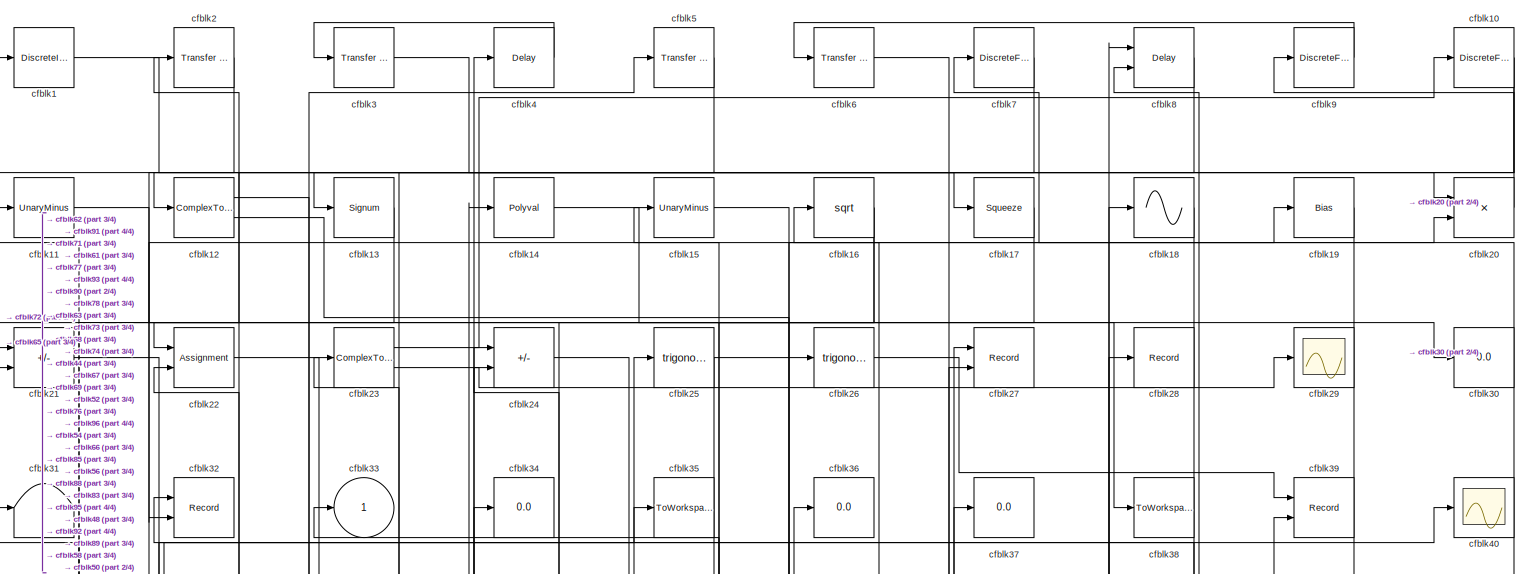
[diagram: root canvas - part 1/4, full width, top band]
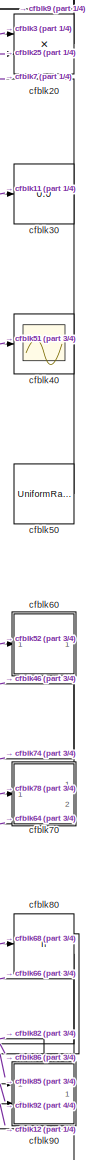
[diagram: root canvas - part 2/4, right side, full height]
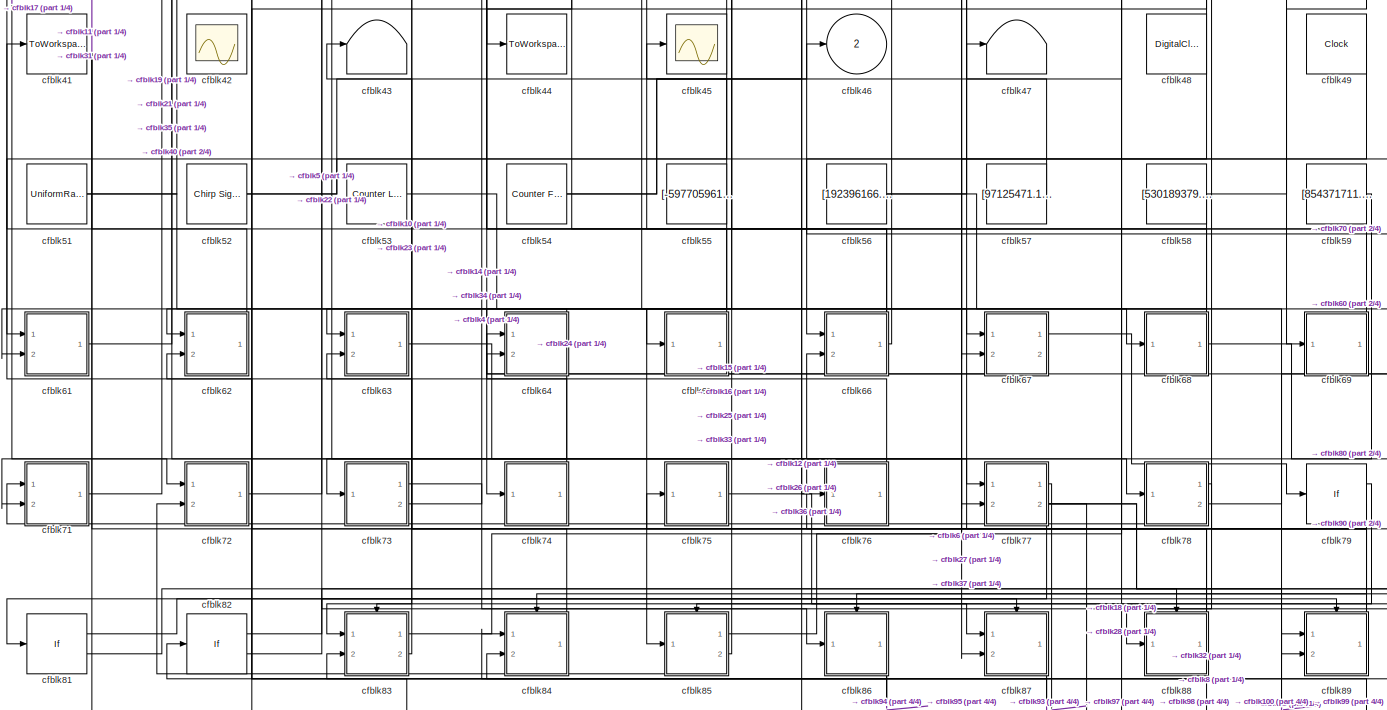
[diagram: root canvas - part 3/4, full width, middle band]
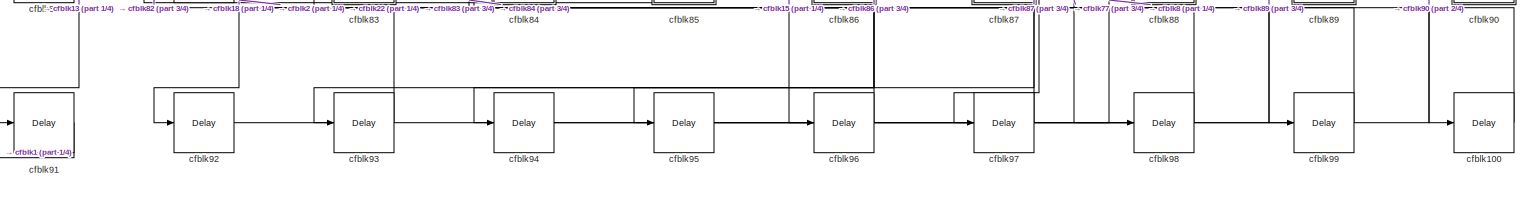
[diagram: root canvas - part 4/4, full width, bottom band]
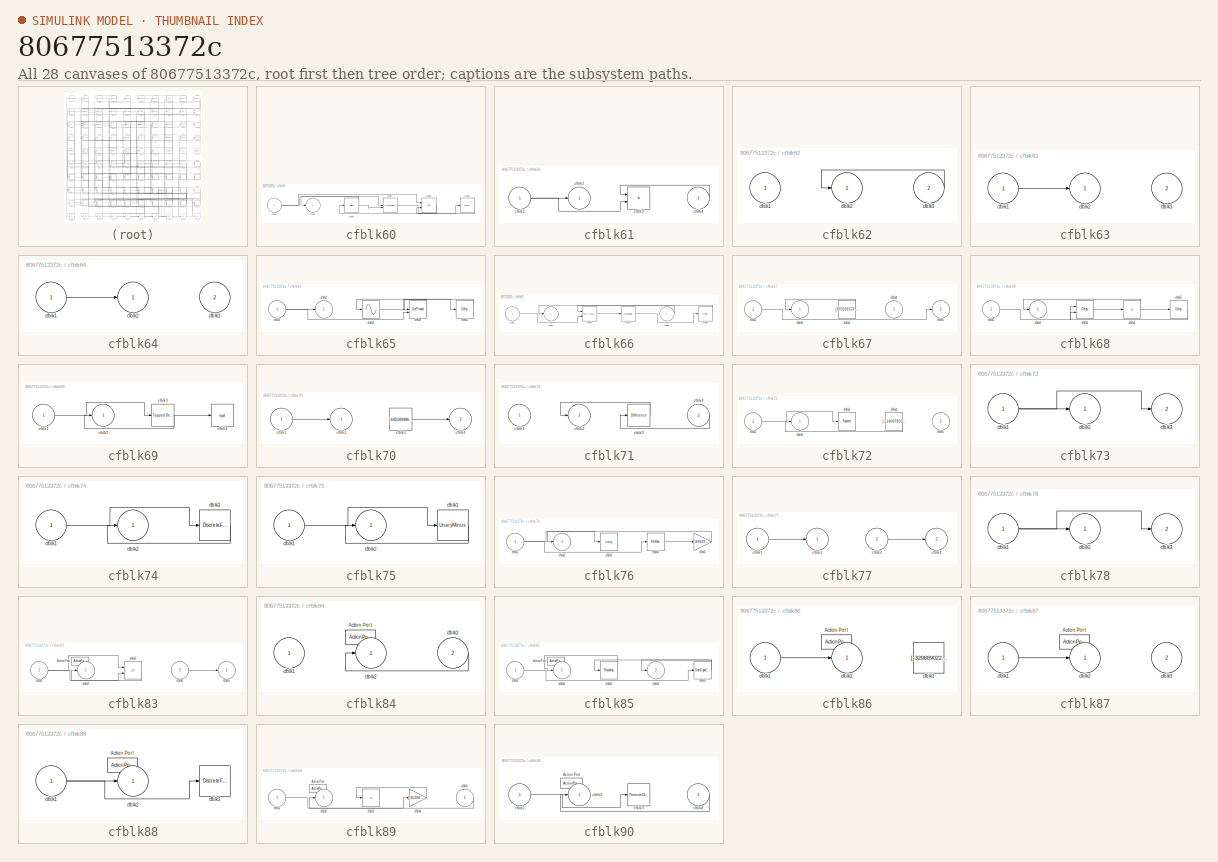
[diagram: thumbnail index - all 28 canvases of the model, root first then tree order]
MODEL slx_80677513372c
KIND model
CONFIG AbsTol = auto
CONFIG EnableMultiTasking = off
CONFIG FixedStep = auto
CONFIG MaxStep = auto
CONFIG MinStep = auto
CONFIG RelTol = 1e-3
CONFIG SampleTimeConstraint = Unconstrained
CONFIG SolverName = VariableStepAuto
CONFIG StartTime = 0.0
CONFIG StopTime = 10.0
BLOCK [DiscreteIntegrator] cfblk1
  ICPrevOutput = DiscIntNeverNeededParam
  ICPrevScaledInput = DiscIntNeverNeededParam
  InitialConditionSetting = Auto
  Ports = [1, 1]
BLOCK [DiscreteFir] cfblk10
  InputPortMap = u0
  OutputPortMap = o0
  Ports = [1, 1]
  SampleTime = 1
BLOCK [Delay] cfblk100
  InputPortMap = u0
  Ports = [1, 1]
  SampleTime = 1
BLOCK [UnaryMinus] cfblk11
BLOCK [ComplexToMagnitudeAngle] cfblk12
  Ports = [1, 2]
BLOCK [Signum] cfblk13
BLOCK [Polyval] cfblk14
  Coefs = [ +2.081618890e-019, -1.441693666e-014, +4.719686976e-010, -8.536869453e-006, +1.621573104e-001, -8.087801117e+001 ]
BLOCK [UnaryMinus] cfblk15
BLOCK [Sqrt] cfblk16
BLOCK [Squeeze] cfblk17
BLOCK [Sin] cfblk18
  Ports = [1, 1]
  SampleTime = 0
  TimeSource = Use external signal
BLOCK [Bias] cfblk19
  Bias = [567170251.979678]
  SaturateOnIntegerOverflow = off
BLOCK [Reference] cfblk2  REF=simulink/Discrete/Transfer Fcn
Real Zero
  Ports = [1, 1]
  SourceBlock = simulink/Discrete/Transfer Fcn\nReal Zero
  SourceProductBaseCode = SL
  SourceType = Transfer Fcn Real Zero
BLOCK [Product] cfblk20
  Inputs = **
  Ports = [2, 1]
BLOCK [Sum] cfblk21
  IconShape = rectangular
  Inputs = +-
  Ports = [2, 1]
BLOCK [Assignment] cfblk22
  DiagnosticForDimensions = Warning
  IndexOptions = Index vector (dialog)
  Indices = 1
  OutputSizes = 1
  Ports = [2, 1]
BLOCK [ComplexToMagnitudeAngle] cfblk23
  Ports = [1, 2]
BLOCK [Sum] cfblk24
  IconShape = rectangular
  Inputs = -+
  Ports = [2, 1]
BLOCK [Trigonometry] cfblk25
  Ports = [1, 1]
BLOCK [Trigonometry] cfblk26
  Ports = [1, 1]
BLOCK [Record] cfblk27
  CompatibilityTag = XY
  FileSettingsInternal = {"entries":[{"content":{"excelSettings":{"content":{},"type":"Streamout.ExcelSettings"}},"type":"Streamout.FileSettingStorage","uuid":"a15bf5db-3741-4cf3-90f6-61c3119d6459"}],"packageUris":["http://schema.mathworks.com/mf0/streamout_blocks/R2020a"],"version":"1.0"}
  Layout = [1 1]
  Ports = [2]
  SignalsInternal = {"entries":[{"content":{"signals":[{"content":{"blockPath":["sampleModel259/cfblk27"],"channel":[],"dimensions":[1],"domain":"sampleModel259/cfblk27","lineColor":"#a2142f","plots":[1],"port":1,"sid":[""],"signalID":10726,"signalName":"cfblk88"},"type":"RecordBlkView.Signal","uuid":"dc7c6215-aa68-4dff-98e1-634e55d8342f"},{"content":{"blockPath":["sampleModel259/cfblk27"],"channel":[],"dimensions":[...<+387ch>
  VisualizationBindings = {"xyplotplugin":{"info":[{"series":[{"bindingParametersList":[{"parameter":"X-Axis","signalID":10726,"signalName":"cfblk88"},{"parameter":"Y-Axis","signalID":10730,"signalName":"cfblk85:1"}],"seriesID":54620}],"subplotID":1}]}}
BLOCK [Record] cfblk28
  FileSettingsInternal = {"entries":[{"content":{"excelSettings":{"content":{},"type":"Streamout.ExcelSettings"}},"type":"Streamout.FileSettingStorage","uuid":"feed3611-4c3d-457a-aeeb-df4a7c1a2444"}],"packageUris":["http://schema.mathworks.com/mf0/streamout_blocks/R2020a"],"version":"1.0"}
  Ports = [1]
  SignalsInternal = {"entries":[{"content":{"signals":[{"content":{"blockPath":["sampleModel259/cfblk28"],"channel":[],"dimensions":[1],"domain":"sampleModel259/cfblk28","lineColor":"#77ac30","plots":[1],"port":1,"sid":[""],"signalID":10752,"signalName":"cfblk54"},"type":"RecordBlkView.Signal","uuid":"2dff1987-6ee1-4f19-a23b-8245c5550991"}]},"type":"RecordBlkView.InputSignals","uuid":"13ac1fd1-a9dd-4df2-87e5-56531520...<+98ch>
  VisualizationBindings = {"sparklinesplugin":{"info":[{"bindingParametersList":[],"subplotID":1}]}}
BLOCK [Scope] cfblk29
  Floating = off
  NumInputPorts = 1
  Ports = [1]
BLOCK [Reference] cfblk3  REF=simulink/Discrete/Transfer Fcn
Real Zero
  Ports = [1, 1]
  SourceBlock = simulink/Discrete/Transfer Fcn\nReal Zero
  SourceProductBaseCode = SL
  SourceType = Transfer Fcn Real Zero
BLOCK [Display] cfblk30
  Decimation = 1
  Ports = [1]
BLOCK [Terminator] cfblk31
BLOCK [Record] cfblk32
  CompatibilityTag = XY
  FileSettingsInternal = {"entries":[{"content":{"excelSettings":{"content":{},"type":"Streamout.ExcelSettings"}},"type":"Streamout.FileSettingStorage","uuid":"b89653e3-1f07-4440-8bba-bfd999475c1f"}],"packageUris":["http://schema.mathworks.com/mf0/streamout_blocks/R2020a"],"version":"1.0"}
  Layout = [1 1]
  Ports = [2]
  SignalsInternal = {"entries":[{"content":{"signals":[{"content":{"blockPath":["sampleModel259/cfblk32"],"channel":[],"dimensions":[1],"domain":"sampleModel259/cfblk32","lineColor":"#a2142f","plots":[1],"port":1,"sid":[""],"signalID":10734,"signalName":"cfblk48"},"type":"RecordBlkView.Signal","uuid":"aa971696-964b-49ee-93f3-322156b77438"},{"content":{"blockPath":["sampleModel259/cfblk32"],"channel":[],"dimensions":[...<+384ch>
  VisualizationBindings = {"xyplotplugin":{"info":[{"series":[{"bindingParametersList":[{"parameter":"X-Axis","signalID":10734,"signalName":"cfblk48"},{"parameter":"Y-Axis","signalID":10738,"signalName":"cfblk7"}],"seriesID":48673}],"subplotID":1}]}}
BLOCK [Outport] cfblk33
BLOCK [Display] cfblk34
  Decimation = 1
  Ports = [1]
BLOCK [ToWorkspace] cfblk35
  FixptAsFi = on
  MaxDataPoints = inf
  Ports = [1]
  SampleTime = -1
  SaveFormat = Timeseries
  VariableName = hqtlqvu
BLOCK [Display] cfblk36
  Decimation = 1
  Ports = [1]
BLOCK [Display] cfblk37
  Decimation = 1
  Ports = [1]
BLOCK [ToWorkspace] cfblk38
  FixptAsFi = on
  MaxDataPoints = inf
  Ports = [1]
  SampleTime = -1
  SaveFormat = Timeseries
  VariableName = zhiieed
BLOCK [Record] cfblk39
  CompatibilityTag = XY
  FileSettingsInternal = {"entries":[{"content":{"excelSettings":{"content":{},"type":"Streamout.ExcelSettings"}},"type":"Streamout.FileSettingStorage","uuid":"77ff0798-a035-4183-a31f-87dc05993ce6"}],"packageUris":["http://schema.mathworks.com/mf0/streamout_blocks/R2020a"],"version":"1.0"}
  Layout = [1 1]
  Ports = [2]
  SignalsInternal = {"entries":[{"content":{"signals":[{"content":{"blockPath":["sampleModel259/cfblk39"],"channel":[],"dimensions":[1],"domain":"sampleModel259/cfblk39","lineColor":"#a2142f","plots":[1],"port":1,"sid":[""],"signalID":10742,"signalName":"cfblk26"},"type":"RecordBlkView.Signal","uuid":"7a6bd62a-1676-4e20-b553-acc02f50362f"},{"content":{"blockPath":["sampleModel259/cfblk39"],"channel":[],"dimensions":[...<+385ch>
  VisualizationBindings = {"xyplotplugin":{"info":[{"series":[{"bindingParametersList":[{"parameter":"X-Axis","signalID":10742,"signalName":"cfblk26"},{"parameter":"Y-Axis","signalID":10746,"signalName":"cfblk58"}],"seriesID":17387}],"subplotID":1}]}}
BLOCK [Delay] cfblk4
  InputPortMap = u0
  Ports = [1, 1]
  SampleTime = 1
BLOCK [Scope] cfblk40
  Floating = off
  NumInputPorts = 1
  Ports = [1]
BLOCK [ToWorkspace] cfblk41
  FixptAsFi = on
  MaxDataPoints = inf
  Ports = [1]
  SampleTime = -1
  SaveFormat = Timeseries
  VariableName = wssaqxk
BLOCK [Scope] cfblk42
  Floating = on
  NumInputPorts = 1
  Ports = []
BLOCK [Terminator] cfblk43
BLOCK [ToWorkspace] cfblk44
  FixptAsFi = on
  MaxDataPoints = inf
  Ports = [1]
  SampleTime = -1
  SaveFormat = Timeseries
  VariableName = cgefoyz
BLOCK [Scope] cfblk45
  Floating = off
  NumInputPorts = 1
  Ports = [1]
BLOCK [Outport] cfblk46
  Port = 2
BLOCK [Terminator] cfblk47
BLOCK [DigitalClock] cfblk48
BLOCK [Clock] cfblk49
BLOCK [Reference] cfblk5  REF=simulink/Discrete/Transfer Fcn
Lead or Lag
  Ports = [1, 1]
  SourceBlock = simulink/Discrete/Transfer Fcn\nLead or Lag
  SourceProductBaseCode = SL
  SourceType = Lead or Lag Compensator
BLOCK [UniformRandomNumber] cfblk50
  Maximum = [1390579412.419839]
  Minimum = [-9722096741.115524]
  SampleTime = 0.1
  Seed = [42070963.000000]
BLOCK [UniformRandomNumber] cfblk51
  Maximum = [862788359.237772]
  Minimum = [-9203084718.990440]
  SampleTime = 0.1
  Seed = [70444919.000000]
BLOCK [Reference] cfblk52  REF=simulink/Sources/Chirp Signal
  Ports = [0, 1]
  SourceBlock = simulink/Sources/Chirp Signal
  SourceProductBaseCode = SL
  SourceType = chirp
BLOCK [Reference] cfblk53  REF=simulink/Sources/Counter
Limited
  Ports = [0, 1]
  SourceBlock = simulink/Sources/Counter\nLimited
  SourceProductBaseCode = SL
  SourceType = Counter Limited
BLOCK [Reference] cfblk54  REF=simulink/Sources/Counter
Free-Running
  Ports = [0, 1]
  SourceBlock = simulink/Sources/Counter\nFree-Running
  SourceProductBaseCode = SL
  SourceType = Counter Free-Running
BLOCK [Constant] cfblk55
  SampleTime = 1
  Value = [-597705961.555916]
BLOCK [Constant] cfblk56
  SampleTime = 1
  Value = [192396166.169117]
BLOCK [Constant] cfblk57
  SampleTime = 1
  Value = [97125471.105077]
BLOCK [Constant] cfblk58
  SampleTime = 1
  Value = [530189379.262105]
BLOCK [Constant] cfblk59
  SampleTime = 1
  Value = [854371711.861911]
BLOCK [Reference] cfblk6  REF=simulink/Discrete/Transfer Fcn
Real Zero
  Ports = [1, 1]
  SourceBlock = simulink/Discrete/Transfer Fcn\nReal Zero
  SourceProductBaseCode = SL
  SourceType = Transfer Fcn Real Zero
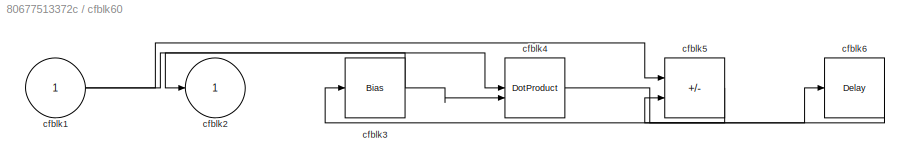
BLOCK [SubSystem] cfblk60
  Ports = [1, 1]
  RequestExecContextInheritance = off
BLOCK [Inport] cfblk60/cfblk1
BLOCK [Outport] cfblk60/cfblk2
BLOCK [Bias] cfblk60/cfblk3
  Bias = [337198668.555358]
  SaturateOnIntegerOverflow = off
BLOCK [DotProduct] cfblk60/cfblk4
  OutDataTypeStr = Inherit: Inherit via internal rule
BLOCK [Sum] cfblk60/cfblk5
  IconShape = rectangular
  Inputs = -+
  Ports = [2, 1]
BLOCK [Delay] cfblk60/cfblk6
  InputPortMap = u0
  Ports = [1, 1]
  SampleTime = 1
BLOCK [SubSystem] cfblk61
  Ports = [2, 1]
  RequestExecContextInheritance = off
BLOCK [Inport] cfblk61/cfblk1
BLOCK [Outport] cfblk61/cfblk2
BLOCK [Product] cfblk61/cfblk3
  Inputs = **
  Ports = [2, 1]
BLOCK [Inport] cfblk61/cfblk4
  Port = 2
BLOCK [SubSystem] cfblk62
  Ports = [2, 1]
  RequestExecContextInheritance = off
BLOCK [Inport] cfblk62/cfblk1
BLOCK [Outport] cfblk62/cfblk2
BLOCK [Inport] cfblk62/cfblk3
  Port = 2
BLOCK [SubSystem] cfblk63
  Ports = [2, 1]
  RequestExecContextInheritance = off
BLOCK [Inport] cfblk63/cfblk1
BLOCK [Outport] cfblk63/cfblk2
BLOCK [Inport] cfblk63/cfblk3
  Port = 2
BLOCK [SubSystem] cfblk64
  Ports = [2, 1]
  RequestExecContextInheritance = off
BLOCK [Inport] cfblk64/cfblk1
BLOCK [Outport] cfblk64/cfblk2
BLOCK [Inport] cfblk64/cfblk3
  Port = 2
BLOCK [SubSystem] cfblk65
  Ports = [1, 1]
  RequestExecContextInheritance = off
BLOCK [Inport] cfblk65/cfblk1
BLOCK [Outport] cfblk65/cfblk2
BLOCK [Sin] cfblk65/cfblk3
  Ports = [1, 1]
  SampleTime = 0
  TimeSource = Use external signal
BLOCK [DotProduct] cfblk65/cfblk4
  OutDataTypeStr = Inherit: Inherit via internal rule
BLOCK [Delay] cfblk65/cfblk5
  InputPortMap = u0
  Ports = [1, 1]
  SampleTime = 1
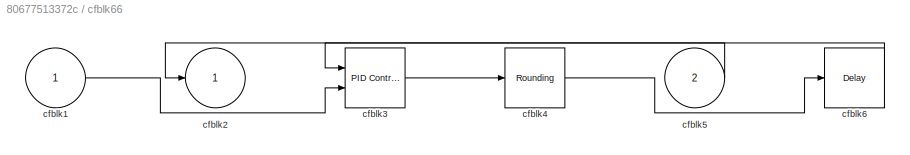
BLOCK [SubSystem] cfblk66
  Ports = [2, 1]
  RequestExecContextInheritance = off
BLOCK [Inport] cfblk66/cfblk1
BLOCK [Outport] cfblk66/cfblk2
BLOCK [Reference] cfblk66/cfblk3  REF=slpidlib/PID Controller (2DOF)
  Ports = [2, 1]
  SourceBlock = slpidlib/PID Controller (2DOF)
  SourceProductBaseCode = SL
  SourceType = PID 2dof
BLOCK [Rounding] cfblk66/cfblk4
BLOCK [Inport] cfblk66/cfblk5
  Port = 2
BLOCK [Delay] cfblk66/cfblk6
  InputPortMap = u0
  Ports = [1, 1]
  SampleTime = 1
BLOCK [SubSystem] cfblk67
  Ports = [2, 2]
  RequestExecContextInheritance = off
BLOCK [Inport] cfblk67/cfblk1
BLOCK [Outport] cfblk67/cfblk2
BLOCK [Constant] cfblk67/cfblk3
  SampleTime = 1
  Value = [170593157.202019]
BLOCK [Inport] cfblk67/cfblk4
  Port = 2
BLOCK [Outport] cfblk67/cfblk5
  Port = 2
BLOCK [SubSystem] cfblk68
  Ports = [1, 1]
  RequestExecContextInheritance = off
BLOCK [Inport] cfblk68/cfblk1
BLOCK [Outport] cfblk68/cfblk2
BLOCK [Delay] cfblk68/cfblk3
  DelayLengthSource = Input port
  InputPortMap = u0,p1
  Ports = [2, 1]
  SampleTime = 1
BLOCK [Product] cfblk68/cfblk4
  Inputs = *
  Ports = [1, 1]
BLOCK [Delay] cfblk68/cfblk5
  InputPortMap = u0
  Ports = [1, 1]
  SampleTime = 1
BLOCK [SubSystem] cfblk69
  Ports = [1, 1]
  RequestExecContextInheritance = off
BLOCK [Inport] cfblk69/cfblk1
BLOCK [Outport] cfblk69/cfblk2
BLOCK [Reference] cfblk69/cfblk3  REF=simulink/Discrete/Tapped Delay
  Ports = [1, 1]
  SourceBlock = simulink/Discrete/Tapped Delay
  SourceProductBaseCode = SL
  SourceType = Tapped Delay Line
BLOCK [Sqrt] cfblk69/cfblk4
BLOCK [DiscreteFilter] cfblk7
  InputPortMap = u0
  Ports = [1, 1]
  SampleTime = 1
BLOCK [SubSystem] cfblk70
  Ports = [1, 2]
  RequestExecContextInheritance = off
BLOCK [Inport] cfblk70/cfblk1
BLOCK [Outport] cfblk70/cfblk2
BLOCK [Constant] cfblk70/cfblk3
  SampleTime = 1
  Value = [-642189486.966722]
BLOCK [Outport] cfblk70/cfblk4
  Port = 2
BLOCK [SubSystem] cfblk71
  Ports = [2, 1]
  RequestExecContextInheritance = off
BLOCK [Inport] cfblk71/cfblk1
BLOCK [Outport] cfblk71/cfblk2
BLOCK [Reference] cfblk71/cfblk3  REF=simulink/Discrete/Difference
  Ports = [1, 1]
  SourceBlock = simulink/Discrete/Difference
  SourceProductBaseCode = SL
  SourceType = Difference
BLOCK [Inport] cfblk71/cfblk4
  Port = 2
BLOCK [SubSystem] cfblk72
  Ports = [2, 1]
  RequestExecContextInheritance = off
BLOCK [Inport] cfblk72/cfblk1
BLOCK [Outport] cfblk72/cfblk2
BLOCK [Squeeze] cfblk72/cfblk3
BLOCK [Constant] cfblk72/cfblk4
  SampleTime = 1
  Value = [-114087835.597097]
BLOCK [Inport] cfblk72/cfblk5
  Port = 2
BLOCK [SubSystem] cfblk73
  Ports = [1, 2]
  RequestExecContextInheritance = off
BLOCK [Inport] cfblk73/cfblk1
BLOCK [Outport] cfblk73/cfblk2
BLOCK [Outport] cfblk73/cfblk3
  Port = 2
BLOCK [SubSystem] cfblk74
  Ports = [1, 1]
  RequestExecContextInheritance = off
BLOCK [Inport] cfblk74/cfblk1
BLOCK [Outport] cfblk74/cfblk2
BLOCK [DiscreteFir] cfblk74/cfblk3
  InputPortMap = u0
  OutputPortMap = o0
  Ports = [1, 1]
  SampleTime = 1
BLOCK [SubSystem] cfblk75
  Ports = [1, 1]
  RequestExecContextInheritance = off
BLOCK [Inport] cfblk75/cfblk1
BLOCK [Outport] cfblk75/cfblk2
BLOCK [UnaryMinus] cfblk75/cfblk3
BLOCK [SubSystem] cfblk76
  Ports = [1, 1]
  RequestExecContextInheritance = off
BLOCK [Inport] cfblk76/cfblk1
BLOCK [Outport] cfblk76/cfblk2
BLOCK [Math] cfblk76/cfblk3
  Operator = conj
  Ports = [1, 1]
BLOCK [MinMax] cfblk76/cfblk4
  Function = max
  Ports = [1, 1]
BLOCK [Gain] cfblk76/cfblk5
  Gain = [-939399860.050888]
BLOCK [SubSystem] cfblk77
  Ports = [2, 2]
  RequestExecContextInheritance = off
BLOCK [Inport] cfblk77/cfblk1
BLOCK [Outport] cfblk77/cfblk2
BLOCK [Inport] cfblk77/cfblk3
  Port = 2
BLOCK [Outport] cfblk77/cfblk4
  Port = 2
BLOCK [SubSystem] cfblk78
  Ports = [1, 2]
  RequestExecContextInheritance = off
BLOCK [Inport] cfblk78/cfblk1
BLOCK [Outport] cfblk78/cfblk2
BLOCK [Outport] cfblk78/cfblk3
  Port = 2
BLOCK [If] cfblk79
  IfExpression = u1 >= 0
  Ports = [1, 2]
  SampleTime = 1
BLOCK [Delay] cfblk8
  InputPortMap = u0,e6
  Ports = [2, 1]
  SampleTime = 1
  ShowEnablePort = on
BLOCK [If] cfblk80
  IfExpression = u1 >= 0
  Ports = [1, 2]
  SampleTime = 1
BLOCK [If] cfblk81
  IfExpression = u1 >= 0
  Ports = [1, 2]
  SampleTime = 1
BLOCK [If] cfblk82
  IfExpression = u1 >= 0
  Ports = [1, 2]
  SampleTime = 1
BLOCK [SubSystem] cfblk83
  Ports = [2, 2, 0, 0, 0, 0, 0, 1]
  RequestExecContextInheritance = off
  TreatAsAtomicUnit = on
BLOCK [ActionPort] cfblk83/Action Port
  ActionPortLabel = if(u1 >= 0)
BLOCK [Inport] cfblk83/cfblk1
BLOCK [Outport] cfblk83/cfblk2
BLOCK [Sum] cfblk83/cfblk3
  IconShape = rectangular
  Inputs = --
  Ports = [2, 1]
BLOCK [Inport] cfblk83/cfblk4
  Port = 2
BLOCK [Outport] cfblk83/cfblk5
  Port = 2
BLOCK [SubSystem] cfblk84
  Ports = [2, 1, 0, 0, 0, 0, 0, 1]
  RequestExecContextInheritance = off
  TreatAsAtomicUnit = on
BLOCK [ActionPort] cfblk84/Action Port
  ActionPortLabel = else
BLOCK [Inport] cfblk84/cfblk1
BLOCK [Outport] cfblk84/cfblk2
BLOCK [Inport] cfblk84/cfblk3
  Port = 2
BLOCK [SubSystem] cfblk85
  Ports = [1, 2, 0, 0, 0, 0, 0, 1]
  RequestExecContextInheritance = off
  TreatAsAtomicUnit = on
BLOCK [ActionPort] cfblk85/Action Port
  ActionPortLabel = if(u1 >= 0)
BLOCK [Inport] cfblk85/cfblk1
BLOCK [Outport] cfblk85/cfblk2
BLOCK [Rounding] cfblk85/cfblk3
BLOCK [Outport] cfblk85/cfblk4
  Port = 2
BLOCK [DataTypeConversion] cfblk85/cfblk5
  RndMeth = Floor
  SaturateOnIntegerOverflow = off
BLOCK [SubSystem] cfblk86
  Ports = [1, 1, 0, 0, 0, 0, 0, 1]
  RequestExecContextInheritance = off
  TreatAsAtomicUnit = on
BLOCK [ActionPort] cfblk86/Action Port
  ActionPortLabel = else
BLOCK [Inport] cfblk86/cfblk1
BLOCK [Outport] cfblk86/cfblk2
BLOCK [Constant] cfblk86/cfblk3
  SampleTime = 1
  Value = [-329889022.897536]
BLOCK [SubSystem] cfblk87
  Ports = [2, 1, 0, 0, 0, 0, 0, 1]
  RequestExecContextInheritance = off
  TreatAsAtomicUnit = on
BLOCK [ActionPort] cfblk87/Action Port
  ActionPortLabel = if(u1 >= 0)
BLOCK [Inport] cfblk87/cfblk1
BLOCK [Outport] cfblk87/cfblk2
BLOCK [Inport] cfblk87/cfblk3
  Port = 2
BLOCK [SubSystem] cfblk88
  Ports = [1, 1, 0, 0, 0, 0, 0, 1]
  RequestExecContextInheritance = off
  TreatAsAtomicUnit = on
BLOCK [ActionPort] cfblk88/Action Port
  ActionPortLabel = else
BLOCK [Inport] cfblk88/cfblk1
BLOCK [Outport] cfblk88/cfblk2
BLOCK [DiscreteFilter] cfblk88/cfblk3
  InputPortMap = u0
  Ports = [1, 1]
BLOCK [SubSystem] cfblk89
  Ports = [2, 1, 0, 0, 0, 0, 0, 1]
  RequestExecContextInheritance = off
  TreatAsAtomicUnit = on
BLOCK [ActionPort] cfblk89/Action Port
  ActionPortLabel = if(u1 >= 0)
BLOCK [Inport] cfblk89/cfblk1
BLOCK [Outport] cfblk89/cfblk2
BLOCK [Product] cfblk89/cfblk3
  Inputs = *
  Ports = [1, 1]
BLOCK [Gain] cfblk89/cfblk4
  Gain = [-352864844.081731]
BLOCK [Inport] cfblk89/cfblk5
  Port = 2
BLOCK [DiscreteFir] cfblk9
  InputPortMap = u0
  OutputPortMap = o0
  Ports = [1, 1]
  SampleTime = 1
BLOCK [SubSystem] cfblk90
  Ports = [2, 1, 0, 0, 0, 0, 0, 1]
  RequestExecContextInheritance = off
  TreatAsAtomicUnit = on
BLOCK [ActionPort] cfblk90/Action Port
  ActionPortLabel = else
BLOCK [Inport] cfblk90/cfblk1
BLOCK [Outport] cfblk90/cfblk2
BLOCK [PermuteDimensions] cfblk90/cfblk3
BLOCK [Inport] cfblk90/cfblk4
  Port = 2
BLOCK [Delay] cfblk91
  InputPortMap = u0
  Ports = [1, 1]
  SampleTime = 1
BLOCK [Delay] cfblk92
  InputPortMap = u0
  Ports = [1, 1]
  SampleTime = 1
BLOCK [Delay] cfblk93
  InputPortMap = u0
  Ports = [1, 1]
  SampleTime = 1
BLOCK [Delay] cfblk94
  InputPortMap = u0
  Ports = [1, 1]
  SampleTime = 1
BLOCK [Delay] cfblk95
  InputPortMap = u0
  Ports = [1, 1]
  SampleTime = 1
BLOCK [Delay] cfblk96
  InputPortMap = u0
  Ports = [1, 1]
  SampleTime = 1
BLOCK [Delay] cfblk97
  InputPortMap = u0
  Ports = [1, 1]
  SampleTime = 1
BLOCK [Delay] cfblk98
  InputPortMap = u0
  Ports = [1, 1]
  SampleTime = 1
BLOCK [Delay] cfblk99
  InputPortMap = u0
  Ports = [1, 1]
  SampleTime = 1
LINE cfblk100:1 -> cfblk84:2
NET cfblk10:1 -> cfblk21:2, cfblk63:1
LINE cfblk11:1 -> cfblk30:1
LINE cfblk12:1 -> cfblk90:2
LINE cfblk12:2 -> cfblk76:1
LINE cfblk13:1 -> cfblk91:1
LINE cfblk14:1 -> cfblk38:1
LINE cfblk15:1 -> cfblk96:1
NET cfblk16:1 -> cfblk44:1, cfblk65:1
LINE cfblk17:1 -> cfblk72:1
LINE cfblk18:1 -> cfblk92:1
LINE cfblk19:1 -> cfblk69:1
LINE cfblk1:1 -> cfblk17:1
LINE cfblk20:1 -> cfblk9:1
LINE cfblk21:1 -> cfblk77:1
LINE cfblk22:1 -> cfblk78:1
LINE cfblk23:1 -> cfblk10:1
LINE cfblk23:2 -> cfblk29:1
LINE cfblk24:1 -> cfblk67:1
NET cfblk25:1 -> cfblk20:2, cfblk61:1
LINE cfblk26:1 -> cfblk39:1
LINE cfblk2:1 -> cfblk12:1
LINE cfblk3:1 -> cfblk20:1
NET cfblk48:1 -> cfblk32:1, cfblk67:2
LINE cfblk49:1 -> cfblk66:1
LINE cfblk4:1 -> cfblk3:1
LINE cfblk50:1 -> cfblk7:1
NET cfblk51:1 -> cfblk40:1, cfblk77:2
NET cfblk52:1 -> cfblk26:1, cfblk60:1
LINE cfblk53:1 -> cfblk85:1
NET cfblk54:1 -> cfblk28:1, cfblk36:1
NET cfblk55:1 -> cfblk45:1, cfblk83:1
NET cfblk56:1 -> cfblk37:1, cfblk89:2
LINE cfblk57:1 -> cfblk47:1
NET cfblk58:1 -> cfblk39:2, cfblk61:2
LINE cfblk59:1 -> cfblk73:1
LINE cfblk5:1 -> cfblk13:1
NET cfblk60/cfblk1:1 -> cfblk60/cfblk4:1, cfblk60/cfblk5:1
NET cfblk60/cfblk3:1 -> cfblk60/cfblk2:1, cfblk60/cfblk4:2
LINE cfblk60/cfblk4:1 -> cfblk60/cfblk6:1
LINE cfblk60/cfblk5:1 -> cfblk60/cfblk3:1
LINE cfblk60/cfblk6:1 -> cfblk60/cfblk5:2
LINE cfblk60:1 -> cfblk74:1
NET cfblk61/cfblk1:1 -> cfblk61/cfblk2:1, cfblk61/cfblk3:2
LINE cfblk61/cfblk4:1 -> cfblk61/cfblk3:1
LINE cfblk61:1 -> cfblk35:1
LINE cfblk62/cfblk3:1 -> cfblk62/cfblk2:1
LINE cfblk62:1 -> cfblk11:1
LINE cfblk63/cfblk1:1 -> cfblk63/cfblk2:1
LINE cfblk63:1 -> cfblk87:2
LINE cfblk64/cfblk1:1 -> cfblk64/cfblk2:1
NET cfblk64:1 -> cfblk62:1, cfblk71:2
NET cfblk65/cfblk1:1 -> cfblk65/cfblk2:1, cfblk65/cfblk4:2
LINE cfblk65/cfblk3:1 -> cfblk65/cfblk5:1
LINE cfblk65/cfblk4:1 -> cfblk65/cfblk3:1
LINE cfblk65/cfblk5:1 -> cfblk65/cfblk4:1
LINE cfblk65:1 -> cfblk21:1
LINE cfblk66/cfblk1:1 -> cfblk66/cfblk3:2
LINE cfblk66/cfblk3:1 -> cfblk66/cfblk4:1
LINE cfblk66/cfblk4:1 -> cfblk66/cfblk6:1
LINE cfblk66/cfblk5:1 -> cfblk66/cfblk2:1
LINE cfblk66/cfblk6:1 -> cfblk66/cfblk3:1
NET cfblk66:1 -> cfblk16:1, cfblk24:1, cfblk24:2
LINE cfblk67/cfblk1:1 -> cfblk67/cfblk5:1
LINE cfblk67/cfblk3:1 -> cfblk67/cfblk2:1
LINE cfblk67:1 -> cfblk79:1
LINE cfblk67:2 -> cfblk64:1
LINE cfblk68/cfblk1:1 -> cfblk68/cfblk3:1
LINE cfblk68/cfblk3:1 -> cfblk68/cfblk4:1
NET cfblk68/cfblk4:1 -> cfblk68/cfblk2:1, cfblk68/cfblk5:1
LINE cfblk68/cfblk5:1 -> cfblk68/cfblk3:2
NET cfblk68:1 -> cfblk34:1, cfblk80:1
LINE cfblk69/cfblk1:1 -> cfblk69/cfblk3:1
NET cfblk69/cfblk3:1 -> cfblk69/cfblk2:1, cfblk69/cfblk4:1
NET cfblk69:1 -> cfblk15:1, cfblk25:1
LINE cfblk6:1 -> cfblk68:1
LINE cfblk70/cfblk1:1 -> cfblk70/cfblk2:1
LINE cfblk70/cfblk3:1 -> cfblk70/cfblk4:1
LINE cfblk70:1 -> cfblk46:1
LINE cfblk70:2 -> cfblk64:2
LINE cfblk71/cfblk3:1 -> cfblk71/cfblk2:1
LINE cfblk71/cfblk4:1 -> cfblk71/cfblk3:1
LINE cfblk71:1 -> cfblk19:1
LINE cfblk72/cfblk1:1 -> cfblk72/cfblk3:1
LINE cfblk72/cfblk4:1 -> cfblk72/cfblk2:1
LINE cfblk72:1 -> cfblk5:1
NET cfblk73/cfblk1:1 -> cfblk73/cfblk2:1, cfblk73/cfblk3:1
LINE cfblk73:1 -> cfblk86:1
LINE cfblk73:2 -> cfblk14:1
LINE cfblk74/cfblk1:1 -> cfblk74/cfblk3:1
LINE cfblk74/cfblk3:1 -> cfblk74/cfblk2:1
LINE cfblk74:1 -> cfblk4:1
LINE cfblk75/cfblk1:1 -> cfblk75/cfblk3:1
LINE cfblk75/cfblk3:1 -> cfblk75/cfblk2:1
LINE cfblk75:1 -> cfblk87:1
NET cfblk76/cfblk1:1 -> cfblk76/cfblk3:1, cfblk76/cfblk4:1
LINE cfblk76/cfblk4:1 -> cfblk76/cfblk5:1
LINE cfblk76/cfblk5:1 -> cfblk76/cfblk2:1
LINE cfblk76:1 -> cfblk41:1
LINE cfblk77/cfblk1:1 -> cfblk77/cfblk2:1
LINE cfblk77/cfblk3:1 -> cfblk77/cfblk4:1
LINE cfblk77:1 -> cfblk97:1
NET cfblk77:2 -> cfblk100:1, cfblk81:1, cfblk98:1, cfblk99:1
NET cfblk78/cfblk1:1 -> cfblk78/cfblk2:1, cfblk78/cfblk3:1
LINE cfblk78:1 -> cfblk88:1
NET cfblk78:2 -> cfblk70:1, cfblk71:1
LINE cfblk79:1 -> cfblk83:ifaction
LINE cfblk79:2 -> cfblk84:ifaction
LINE cfblk7:1 -> cfblk32:2
LINE cfblk80:1 -> cfblk85:ifaction
LINE cfblk80:2 -> cfblk86:ifaction
LINE cfblk81:1 -> cfblk87:ifaction
LINE cfblk81:2 -> cfblk88:ifaction
LINE cfblk82:1 -> cfblk89:ifaction
LINE cfblk82:2 -> cfblk90:ifaction
NET cfblk83/cfblk1:1 -> cfblk83/cfblk3:1, cfblk83/cfblk3:2
LINE cfblk83/cfblk3:1 -> cfblk83/cfblk2:1
LINE cfblk83/cfblk4:1 -> cfblk83/cfblk5:1
LINE cfblk83:1 -> cfblk18:1
LINE cfblk83:2 -> cfblk23:1
LINE cfblk84/cfblk3:1 -> cfblk84/cfblk2:1
LINE cfblk84:1 -> cfblk43:1
LINE cfblk85/cfblk1:1 -> cfblk85/cfblk5:1
LINE cfblk85/cfblk3:1 -> cfblk85/cfblk2:1
NET cfblk85/cfblk5:1 -> cfblk85/cfblk3:1, cfblk85/cfblk4:1
LINE cfblk85:1 -> cfblk27:2
NET cfblk85:2 -> cfblk33:1, cfblk72:2
LINE cfblk86/cfblk1:1 -> cfblk86/cfblk2:1
NET cfblk86:1 -> cfblk94:1, cfblk95:1
LINE cfblk87/cfblk1:1 -> cfblk87/cfblk2:1
LINE cfblk87:1 -> cfblk93:1
NET cfblk88/cfblk1:1 -> cfblk88/cfblk2:1, cfblk88/cfblk3:1
NET cfblk88:1 -> cfblk27:1, cfblk31:1
LINE cfblk89/cfblk1:1 -> cfblk89/cfblk4:1
LINE cfblk89/cfblk4:1 -> cfblk89/cfblk3:1
LINE cfblk89/cfblk5:1 -> cfblk89/cfblk2:1
NET cfblk89:1 -> cfblk62:2, cfblk63:2, cfblk75:1, cfblk8:2
LINE cfblk8:1 -> cfblk22:1
LINE cfblk90/cfblk1:1 -> cfblk90/cfblk3:1
LINE cfblk90/cfblk4:1 -> cfblk90/cfblk2:1
LINE cfblk90:1 -> cfblk66:2
LINE cfblk91:1 -> cfblk1:1
LINE cfblk92:1 -> cfblk90:1
LINE cfblk93:1 -> cfblk2:1
LINE cfblk94:1 -> cfblk89:1
LINE cfblk95:1 -> cfblk8:1
LINE cfblk96:1 -> cfblk22:2
LINE cfblk97:1 -> cfblk82:1
LINE cfblk98:1 -> cfblk83:2
LINE cfblk99:1 -> cfblk84:1
LINE cfblk9:1 -> cfblk6:1
note: NET lines group one-source signal fan-out (src -> all destinations, sorted); 1:1 wires keep LINE
